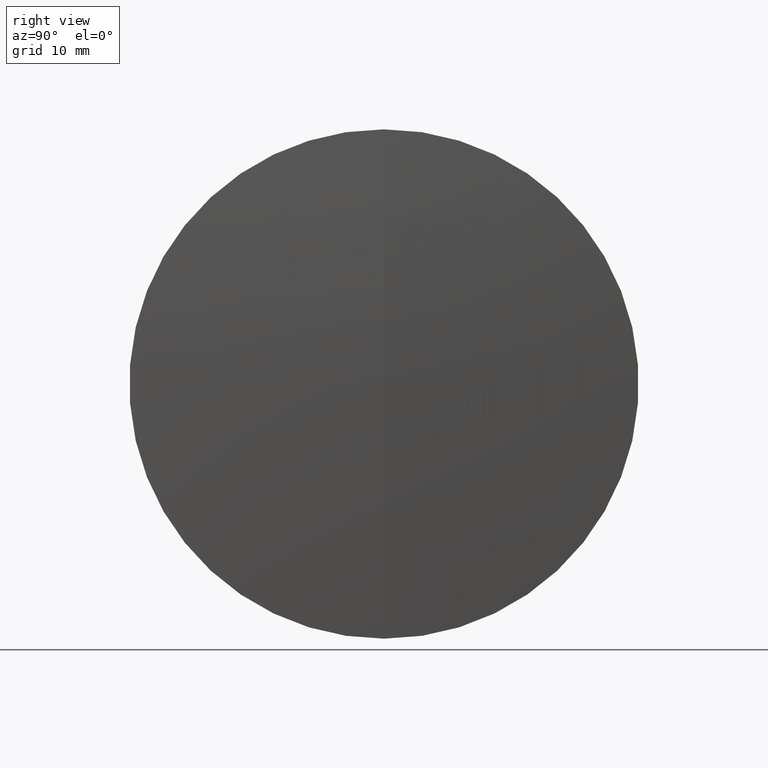
[diagram: clean part render]
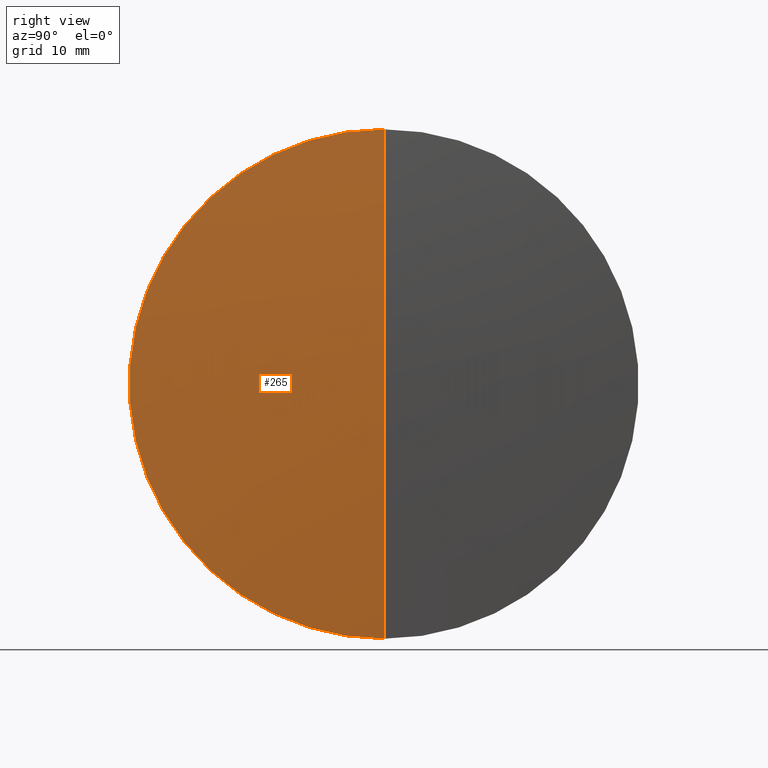
[diagram: same view with one face highlighted and labeled with its STEP entity id]
A machine part, right view. The second image highlights one B-rep face of the part: STEP entity #265.
In plain terms, the highlighted spherical surface has radius 325.1 mm.
Its self-contained STEP definition (entity closure, byte-faithful):
#9 = CIRCLE ( 'NONE', #241, 25.39999999999997000 ) ;
#16 = CIRCLE ( 'NONE', #130, 325.1000000000000200 ) ;
#20 = EDGE_LOOP ( 'NONE', ( #266, #142, #128 ) ) ;
#41 = AXIS2_PLACEMENT_3D ( 'NONE', #281, #159, #119 ) ;
#43 = DIRECTION ( 'NONE',  ( 0.0000000000000000000, -1.000000000000000000, 0.0000000000000000000 ) ) ;
#51 = AXIS2_PLACEMENT_3D ( 'NONE', #184, #87, #136 ) ;
#53 = CARTESIAN_POINT ( 'NONE',  ( 557.6867918586409600, 0.0000000000000000000, 25.39999999999997000 ) ) ;
#54 = CARTESIAN_POINT ( 'NONE',  ( 557.6867918586409600, 3.110602869834276100E-015, -25.39999999999997000 ) ) ;
#63 = EDGE_CURVE ( 'NONE', #174, #287, #215, .T. ) ;
#78 = DIRECTION ( 'NONE',  ( 0.0000000000000000000, 0.0000000000000000000, 1.000000000000000000 ) ) ;
#87 = DIRECTION ( 'NONE',  ( 0.0000000000000000000, 1.000000000000000000, 0.0000000000000000000 ) ) ;
#89 = EDGE_CURVE ( 'NONE', #174, #300, #16, .T. ) ;
#109 = CARTESIAN_POINT ( 'NONE',  ( 557.6867918586409600, 0.0000000000000000000, 0.0000000000000000000 ) ) ;
#119 = DIRECTION ( 'NONE',  ( 0.0000000000000000000, -1.224646799147353000E-016, 1.000000000000000000 ) ) ;
#128 = ORIENTED_EDGE ( 'NONE', *, *, #137, .F. ) ;
#130 = AXIS2_PLACEMENT_3D ( 'NONE', #214, #43, #303 ) ;
#133 = CARTESIAN_POINT ( 'NONE',  ( 558.6805592743230600, 0.0000000000000000000, 1.990663372014022500E-014 ) ) ;
#136 = DIRECTION ( 'NONE',  ( 0.0000000000000000000, 0.0000000000000000000, 1.000000000000000000 ) ) ;
#137 = EDGE_CURVE ( 'NONE', #287, #300, #9, .T. ) ;
#142 = ORIENTED_EDGE ( 'NONE', *, *, #89, .T. ) ;
#159 = DIRECTION ( 'NONE',  ( -0.0000000000000000000, 1.000000000000000000, 1.224646799147353200E-016 ) ) ;
#174 = VERTEX_POINT ( 'NONE', #133 ) ;
#184 = CARTESIAN_POINT ( 'NONE',  ( 233.5805592743230400, 0.0000000000000000000, 0.0000000000000000000 ) ) ;
#214 = CARTESIAN_POINT ( 'NONE',  ( 233.5805592743230400, 0.0000000000000000000, 0.0000000000000000000 ) ) ;
#215 = CIRCLE ( 'NONE', #41, 325.1000000000000200 ) ;
#241 = AXIS2_PLACEMENT_3D ( 'NONE', #109, #272, #78 ) ;
#265 = ADVANCED_FACE ( 'NONE', ( #280 ), #311, .T. ) ;
#266 = ORIENTED_EDGE ( 'NONE', *, *, #63, .F. ) ;
#272 = DIRECTION ( 'NONE',  ( -1.000000000000000000, -0.0000000000000000000, -0.0000000000000000000 ) ) ;
#280 = FACE_OUTER_BOUND ( 'NONE', #20, .T. ) ;
#281 = CARTESIAN_POINT ( 'NONE',  ( 233.5805592743230400, 0.0000000000000000000, 0.0000000000000000000 ) ) ;
#287 = VERTEX_POINT ( 'NONE', #54 ) ;
#300 = VERTEX_POINT ( 'NONE', #53 ) ;
#303 = DIRECTION ( 'NONE',  ( 0.0000000000000000000, 0.0000000000000000000, -1.000000000000000000 ) ) ;
#311 = SPHERICAL_SURFACE ( 'NONE', #51, 325.1000000000000200 ) ;